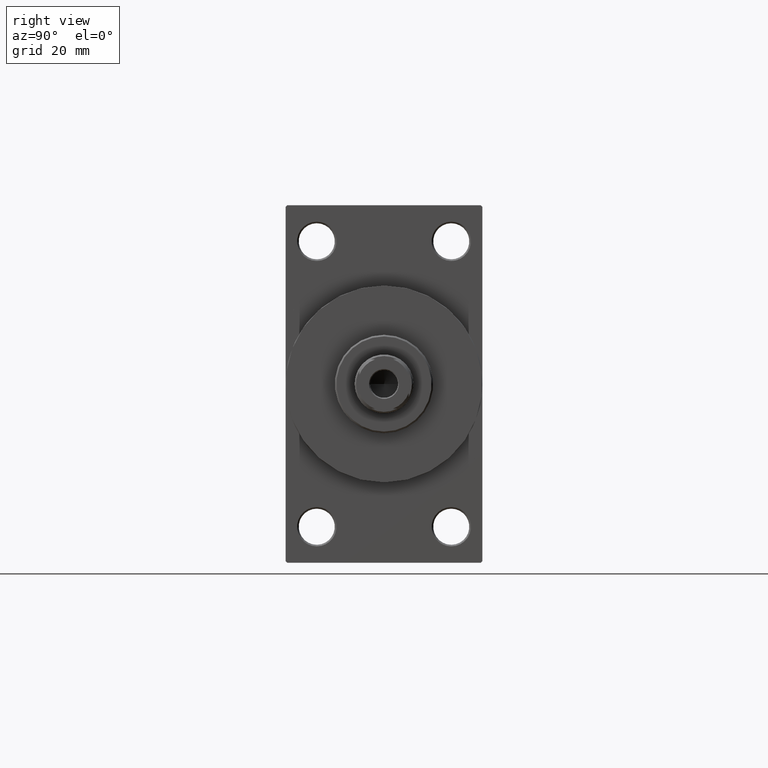
[diagram: clean part render]
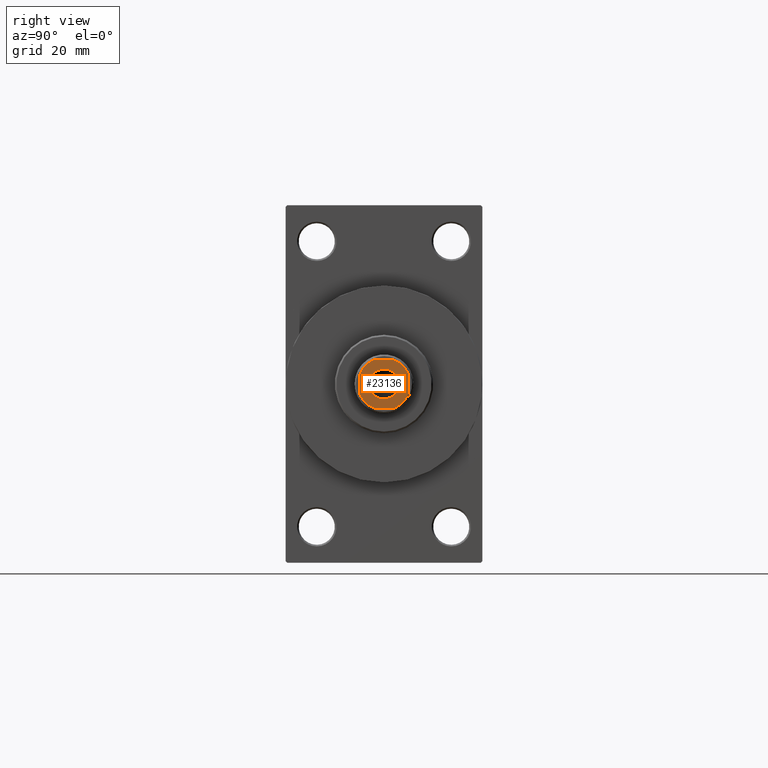
[diagram: same view with one face highlighted and labeled with its STEP entity id]
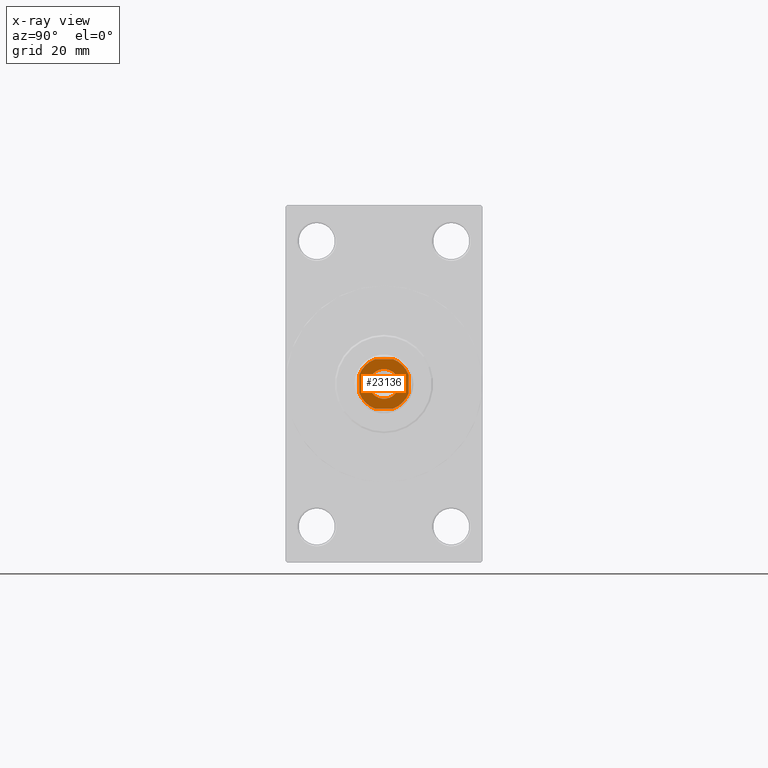
[diagram: x-ray of the same camera — body ghosted, the highlighted face saturated]
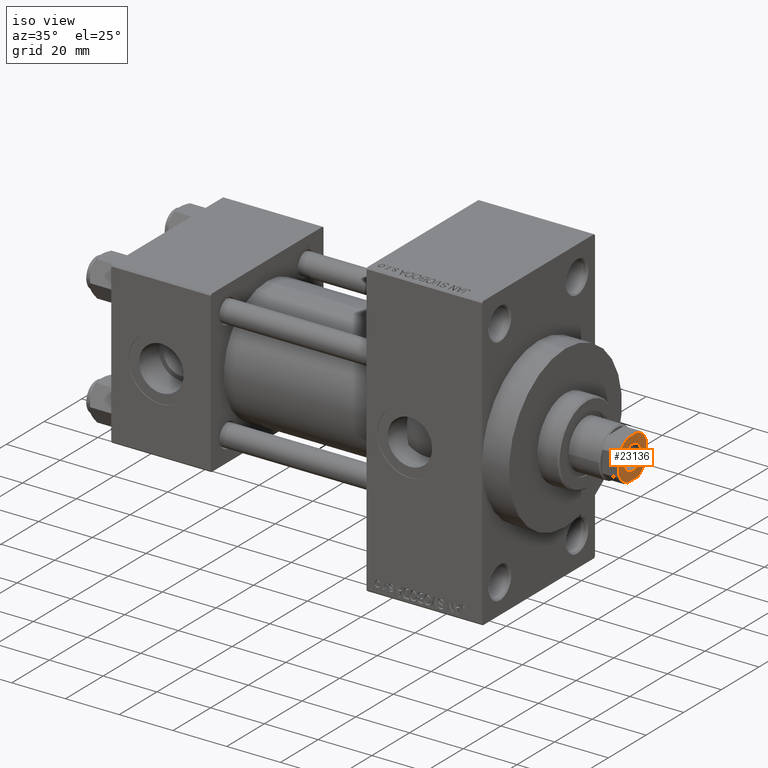
[diagram: same view with one face highlighted and labeled with its STEP entity id]
A machine part, right view. The second image highlights one B-rep face of the part: STEP entity #23136.
The next image is the same camera in x-ray: the body ghosted, the highlighted face saturated — about 0% of this face is hidden behind the body in this view.
A second angle (iso view) of the same face is appended — the face is thin or edge-on in the first view.
In plain terms, the highlighted planar face has unit normal (1, 0, 0).
Its self-contained STEP definition (entity closure, byte-faithful):
#236 = CARTESIAN_POINT ( 'NONE',  ( 0.000000000000000000, 0.000000000000000000, 136.0000000000000000 ) ) ;
#1016 = VECTOR ( 'NONE', #17789, 1000.000000000000000 ) ;
#1895 = DIRECTION ( 'NONE',  ( -0.000000000000000000, 0.000000000000000000, 1.000000000000000000 ) ) ;
#2132 = CARTESIAN_POINT ( 'NONE',  ( 0.000000000000000000, 0.000000000000000000, 136.0000000000000000 ) ) ;
#2272 = CARTESIAN_POINT ( 'NONE',  ( 7.500000000000000000, 7.500000000000000000, 136.0000000000000000 ) ) ;
#2485 = EDGE_CURVE ( 'NONE', #3922, #26843, #17555, .T. ) ;
#3323 = CARTESIAN_POINT ( 'NONE',  ( 7.500000000000000888, 2.783882181415126222, 136.0000000000000000 ) ) ;
#3922 = VERTEX_POINT ( 'NONE', #5451 ) ;
#4042 = ORIENTED_EDGE ( 'NONE', *, *, #30887, .T. ) ;
#5451 = CARTESIAN_POINT ( 'NONE',  ( -2.783882181414952139, -7.500000000000000000, 136.0000000000000000 ) ) ;
#5709 = EDGE_LOOP ( 'NONE', ( #19808, #4042, #30804, #10685, #30732, #45700, #16226, #42857 ) ) ;
#5719 = DIRECTION ( 'NONE',  ( 1.000000000000000000, 0.000000000000000000, 0.000000000000000000 ) ) ;
#6260 = EDGE_CURVE ( 'NONE', #32316, #3922, #15475, .T. ) ;
#6855 = EDGE_CURVE ( 'NONE', #12003, #16700, #17052, .T. ) ;
#8541 = CIRCLE ( 'NONE', #20774, 8.000000000000040856 ) ;
#10222 = CIRCLE ( 'NONE', #20127, 8.000000000000042633 ) ;
#10552 = EDGE_CURVE ( 'NONE', #41212, #12003, #18814, .T. ) ;
#10685 = ORIENTED_EDGE ( 'NONE', *, *, #6855, .T. ) ;
#10832 = DIRECTION ( 'NONE',  ( 0.000000000000000000, -0.000000000000000000, -1.000000000000000000 ) ) ;
#10870 = AXIS2_PLACEMENT_3D ( 'NONE', #23761, #38301, #17049 ) ;
#11833 = VECTOR ( 'NONE', #21948, 1000.000000000000000 ) ;
#12003 = VERTEX_POINT ( 'NONE', #21845 ) ;
#13725 = DIRECTION ( 'NONE',  ( 1.156482317317871725E-16, -1.000000000000000000, 0.000000000000000000 ) ) ;
#13951 = LINE ( 'NONE', #14190, #47021 ) ;
#14190 = CARTESIAN_POINT ( 'NONE',  ( -7.500000000000000000, 7.499999999999998224, 136.0000000000000000 ) ) ;
#14274 = CARTESIAN_POINT ( 'NONE',  ( -7.500000000000000000, 7.499999999999998224, 136.0000000000000000 ) ) ;
#14298 = FACE_BOUND ( 'NONE', #23301, .T. ) ;
#15475 = CIRCLE ( 'NONE', #42167, 7.999999999999979572 ) ;
#16009 = CARTESIAN_POINT ( 'NONE',  ( 0.000000000000000000, 0.000000000000000000, 136.0000000000000000 ) ) ;
#16226 = ORIENTED_EDGE ( 'NONE', *, *, #2485, .T. ) ;
#16407 = AXIS2_PLACEMENT_3D ( 'NONE', #43094, #10832, #25673 ) ;
#16700 = VERTEX_POINT ( 'NONE', #37762 ) ;
#16719 = DIRECTION ( 'NONE',  ( -0.000000000000000000, 0.000000000000000000, 1.000000000000000000 ) ) ;
#16946 = DIRECTION ( 'NONE',  ( 1.000000000000000000, 0.000000000000000000, 0.000000000000000000 ) ) ;
#17049 = DIRECTION ( 'NONE',  ( 1.000000000000000000, 0.000000000000000000, 0.000000000000000000 ) ) ;
#17052 = CIRCLE ( 'NONE', #33076, 7.999999999999981348 ) ;
#17555 = LINE ( 'NONE', #28311, #1016 ) ;
#17769 = VECTOR ( 'NONE', #30966, 1000.000000000000000 ) ;
#17789 = DIRECTION ( 'NONE',  ( 1.000000000000000000, 0.000000000000000000, 0.000000000000000000 ) ) ;
#18363 = CARTESIAN_POINT ( 'NONE',  ( 0.000000000000000000, 0.000000000000000000, 136.0000000000000000 ) ) ;
#18530 = CIRCLE ( 'NONE', #10870, 4.549999999999970512 ) ;
#18603 = PLANE ( 'NONE',  #37420 ) ;
#18814 = LINE ( 'NONE', #14274, #11833 ) ;
#18910 = CARTESIAN_POINT ( 'NONE',  ( 2.783882181415132440, -7.500000000000000000, 136.0000000000000000 ) ) ;
#19808 = ORIENTED_EDGE ( 'NONE', *, *, #33103, .T. ) ;
#20127 = AXIS2_PLACEMENT_3D ( 'NONE', #236, #37274, #33218 ) ;
#20214 = ORIENTED_EDGE ( 'NONE', *, *, #45568, .T. ) ;
#20774 = AXIS2_PLACEMENT_3D ( 'NONE', #2132, #1895, #5719 ) ;
#20819 = VERTEX_POINT ( 'NONE', #23852 ) ;
#21303 = CARTESIAN_POINT ( 'NONE',  ( 4.549999999999970512, 0.000000000000000000, 136.0000000000000000 ) ) ;
#21845 = CARTESIAN_POINT ( 'NONE',  ( -2.783882181414960577, 7.499999999999999112, 136.0000000000000000 ) ) ;
#21882 = VERTEX_POINT ( 'NONE', #21303 ) ;
#21948 = DIRECTION ( 'NONE',  ( -1.000000000000000000, -1.156482317317871478E-16, -0.000000000000000000 ) ) ;
#21974 = FACE_OUTER_BOUND ( 'NONE', #5709, .T. ) ;
#23032 = CARTESIAN_POINT ( 'NONE',  ( 0.000000000000000000, 0.000000000000000000, 136.0000000000000000 ) ) ;
#23136 = ADVANCED_FACE ( 'NONE', ( #14298, #21974 ), #18603, .T. ) ;
#23301 = EDGE_LOOP ( 'NONE', ( #20214, #33390 ) ) ;
#23761 = CARTESIAN_POINT ( 'NONE',  ( 0.000000000000000000, 0.000000000000000000, 136.0000000000000000 ) ) ;
#23852 = CARTESIAN_POINT ( 'NONE',  ( -4.549999999999970512, 5.572142936120421828E-16, 136.0000000000000000 ) ) ;
#24993 = VERTEX_POINT ( 'NONE', #41020 ) ;
#25673 = DIRECTION ( 'NONE',  ( 1.000000000000000000, 0.000000000000000000, 0.000000000000000000 ) ) ;
#26843 = VERTEX_POINT ( 'NONE', #18910 ) ;
#27841 = CARTESIAN_POINT ( 'NONE',  ( 2.783882181415129331, 7.499999999999999112, 136.0000000000000000 ) ) ;
#27871 = EDGE_CURVE ( 'NONE', #20819, #21882, #18530, .T. ) ;
#28311 = CARTESIAN_POINT ( 'NONE',  ( -7.499999999999998224, -7.500000000000000000, 136.0000000000000000 ) ) ;
#28886 = DIRECTION ( 'NONE',  ( -0.000000000000000000, 0.000000000000000000, 1.000000000000000000 ) ) ;
#30732 = ORIENTED_EDGE ( 'NONE', *, *, #40133, .T. ) ;
#30804 = ORIENTED_EDGE ( 'NONE', *, *, #10552, .T. ) ;
#30887 = EDGE_CURVE ( 'NONE', #35580, #41212, #8541, .T. ) ;
#30966 = DIRECTION ( 'NONE',  ( -1.156482317317871478E-16, 1.000000000000000000, -0.000000000000000000 ) ) ;
#32316 = VERTEX_POINT ( 'NONE', #32654 ) ;
#32654 = CARTESIAN_POINT ( 'NONE',  ( -7.499999999999997335, -2.783882181414957468, 136.0000000000000000 ) ) ;
#32931 = DIRECTION ( 'NONE',  ( 1.000000000000000000, 0.000000000000000000, 0.000000000000000000 ) ) ;
#33076 = AXIS2_PLACEMENT_3D ( 'NONE', #23032, #33768, #41373 ) ;
#33103 = EDGE_CURVE ( 'NONE', #24993, #35580, #34541, .T. ) ;
#33218 = DIRECTION ( 'NONE',  ( 1.000000000000000000, 0.000000000000000000, 0.000000000000000000 ) ) ;
#33390 = ORIENTED_EDGE ( 'NONE', *, *, #27871, .T. ) ;
#33768 = DIRECTION ( 'NONE',  ( -0.000000000000000000, 0.000000000000000000, 1.000000000000000000 ) ) ;
#34541 = LINE ( 'NONE', #2272, #17769 ) ;
#34735 = EDGE_CURVE ( 'NONE', #26843, #24993, #10222, .T. ) ;
#35580 = VERTEX_POINT ( 'NONE', #3323 ) ;
#36219 = CIRCLE ( 'NONE', #16407, 4.549999999999970512 ) ;
#37274 = DIRECTION ( 'NONE',  ( -0.000000000000000000, 0.000000000000000000, 1.000000000000000000 ) ) ;
#37420 = AXIS2_PLACEMENT_3D ( 'NONE', #18363, #28886, #32931 ) ;
#37762 = CARTESIAN_POINT ( 'NONE',  ( -7.499999999999999112, 2.783882181414961021, 136.0000000000000000 ) ) ;
#38301 = DIRECTION ( 'NONE',  ( 0.000000000000000000, -0.000000000000000000, -1.000000000000000000 ) ) ;
#40133 = EDGE_CURVE ( 'NONE', #16700, #32316, #13951, .T. ) ;
#41020 = CARTESIAN_POINT ( 'NONE',  ( 7.500000000000000888, -2.783882181415129331, 136.0000000000000000 ) ) ;
#41212 = VERTEX_POINT ( 'NONE', #27841 ) ;
#41373 = DIRECTION ( 'NONE',  ( 1.000000000000000000, 0.000000000000000000, 0.000000000000000000 ) ) ;
#42167 = AXIS2_PLACEMENT_3D ( 'NONE', #16009, #16719, #16946 ) ;
#42857 = ORIENTED_EDGE ( 'NONE', *, *, #34735, .T. ) ;
#43094 = CARTESIAN_POINT ( 'NONE',  ( 0.000000000000000000, 0.000000000000000000, 136.0000000000000000 ) ) ;
#45568 = EDGE_CURVE ( 'NONE', #21882, #20819, #36219, .T. ) ;
#45700 = ORIENTED_EDGE ( 'NONE', *, *, #6260, .T. ) ;
#47021 = VECTOR ( 'NONE', #13725, 1000.000000000000000 ) ;